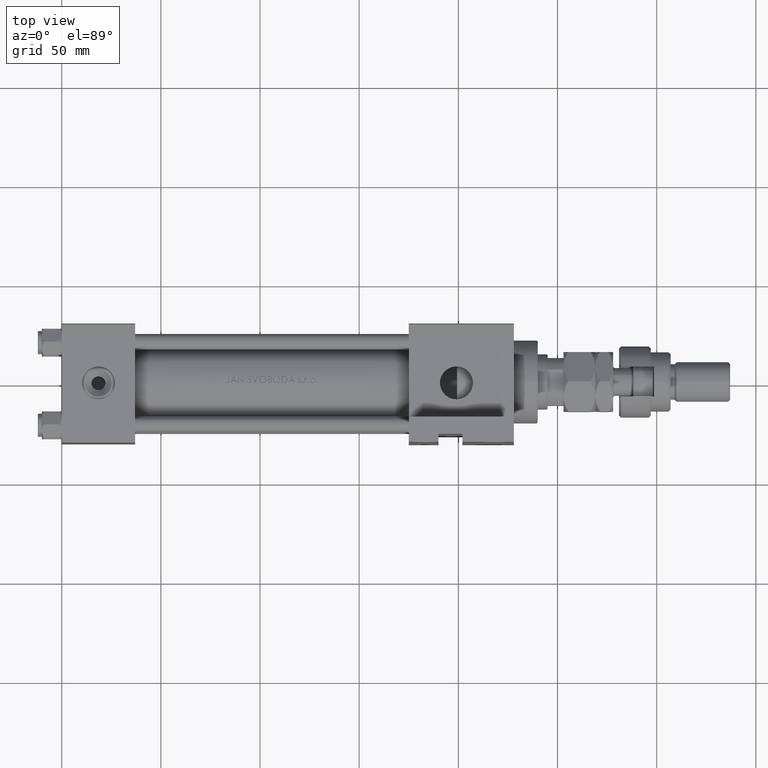
[diagram: clean part render]
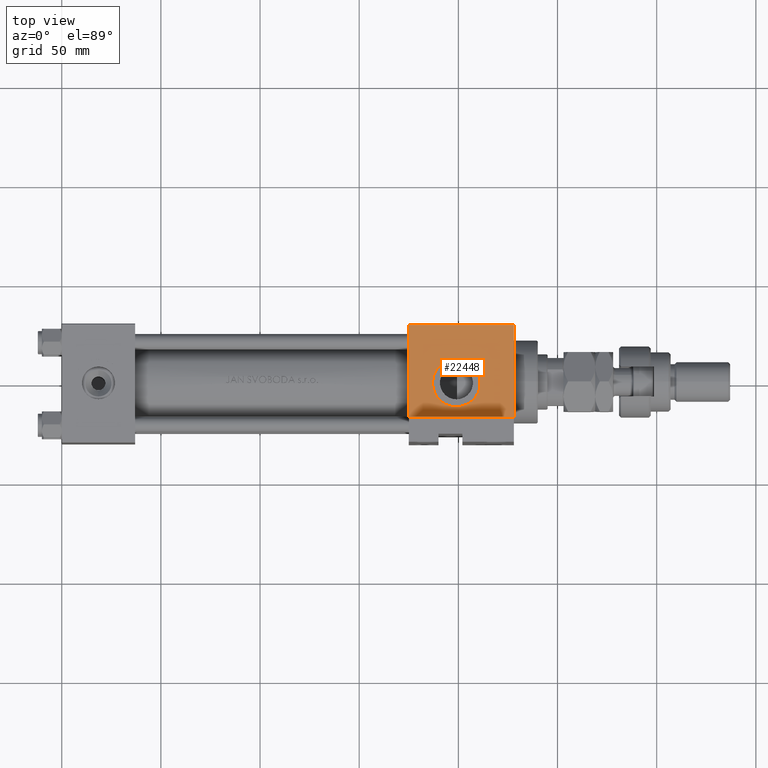
[diagram: same view with one face highlighted and labeled with its STEP entity id]
A machine part, top view. The second image highlights one B-rep face of the part: STEP entity #22448.
In plain terms, the highlighted planar face has unit normal (0, 0, -1).
Its self-contained STEP definition (entity closure, byte-faithful):
#780 = AXIS2_PLACEMENT_3D ( 'NONE', #2807, #26972, #31295 ) ;
#871 = VECTOR ( 'NONE', #53428, 1000.000000000000000 ) ;
#2807 = CARTESIAN_POINT ( 'NONE',  ( 199.0000000000000000, -30.00000000000000000, 0.000000000000000000 ) ) ;
#3463 = DIRECTION ( 'NONE',  ( -0.000000000000000000, 1.000000000000000000, 0.000000000000000000 ) ) ;
#3965 = LINE ( 'NONE', #16433, #14555 ) ;
#4286 = CIRCLE ( 'NONE', #780, 12.00000000000000533 ) ;
#4343 = LINE ( 'NONE', #20354, #871 ) ;
#5247 = CARTESIAN_POINT ( 'NONE',  ( 175.0000000000000284, -30.00000000000000000, 29.50000000000001776 ) ) ;
#5619 = DIRECTION ( 'NONE',  ( 0.000000000000000000, 0.000000000000000000, -1.000000000000000000 ) ) ;
#5981 = CARTESIAN_POINT ( 'NONE',  ( 228.0000000000000000, -30.00000000000000000, 29.50000000000001776 ) ) ;
#6167 = ORIENTED_EDGE ( 'NONE', *, *, #45989, .T. ) ;
#7065 = EDGE_CURVE ( 'NONE', #21072, #24939, #32379, .T. ) ;
#10650 = AXIS2_PLACEMENT_3D ( 'NONE', #16466, #3463, #20010 ) ;
#14555 = VECTOR ( 'NONE', #16694, 1000.000000000000000 ) ;
#14780 = EDGE_CURVE ( 'NONE', #42844, #15745, #4286, .T. ) ;
#15717 = AXIS2_PLACEMENT_3D ( 'NONE', #47125, #38993, #5619 ) ;
#15745 = VERTEX_POINT ( 'NONE', #38563 ) ;
#15990 = ORIENTED_EDGE ( 'NONE', *, *, #14780, .F. ) ;
#16433 = CARTESIAN_POINT ( 'NONE',  ( 228.0000000000000000, -30.00000000000000000, 29.99999999999999289 ) ) ;
#16466 = CARTESIAN_POINT ( 'NONE',  ( 228.0000000000000000, -30.00000000000000000, 29.99999999999999289 ) ) ;
#16694 = DIRECTION ( 'NONE',  ( 0.000000000000000000, 0.000000000000000000, -1.000000000000000000 ) ) ;
#17483 = VECTOR ( 'NONE', #26401, 1000.000000000000000 ) ;
#20010 = DIRECTION ( 'NONE',  ( 0.000000000000000000, -0.000000000000000000, 1.000000000000000000 ) ) ;
#20354 = CARTESIAN_POINT ( 'NONE',  ( 175.0000000000000284, -30.00000000000000000, -17.49999999999999645 ) ) ;
#20421 = DIRECTION ( 'NONE',  ( -1.000000000000000000, 0.000000000000000000, 0.000000000000000000 ) ) ;
#20537 = PLANE ( 'NONE',  #10650 ) ;
#20579 = CARTESIAN_POINT ( 'NONE',  ( 175.0000000000000284, -30.00000000000000000, -17.49999999999999645 ) ) ;
#21072 = VERTEX_POINT ( 'NONE', #5981 ) ;
#21382 = EDGE_LOOP ( 'NONE', ( #32417, #45855, #24127, #6167 ) ) ;
#22448 = ADVANCED_FACE ( 'NONE', ( #24098, #40636 ), #20537, .F. ) ;
#23400 = VERTEX_POINT ( 'NONE', #30894 ) ;
#24098 = FACE_BOUND ( 'NONE', #42811, .T. ) ;
#24127 = ORIENTED_EDGE ( 'NONE', *, *, #49198, .T. ) ;
#24776 = CARTESIAN_POINT ( 'NONE',  ( 228.0000000000000000, -30.00000000000000000, 29.50000000000001776 ) ) ;
#24939 = VERTEX_POINT ( 'NONE', #5247 ) ;
#25854 = LINE ( 'NONE', #43453, #17483 ) ;
#26401 = DIRECTION ( 'NONE',  ( 0.000000000000000000, 0.000000000000000000, -1.000000000000000000 ) ) ;
#26778 = CARTESIAN_POINT ( 'NONE',  ( 199.0000000000000000, -30.00000000000000000, 12.00000000000000533 ) ) ;
#26972 = DIRECTION ( 'NONE',  ( 0.000000000000000000, -1.000000000000000000, -8.673617379884036705E-17 ) ) ;
#30894 = CARTESIAN_POINT ( 'NONE',  ( 228.0000000000000000, -30.00000000000000000, -17.49999999999998224 ) ) ;
#31295 = DIRECTION ( 'NONE',  ( 0.000000000000000000, 0.000000000000000000, -1.000000000000000000 ) ) ;
#32379 = LINE ( 'NONE', #24776, #51589 ) ;
#32417 = ORIENTED_EDGE ( 'NONE', *, *, #36241, .F. ) ;
#34770 = CIRCLE ( 'NONE', #15717, 12.00000000000000533 ) ;
#36241 = EDGE_CURVE ( 'NONE', #21072, #23400, #3965, .T. ) ;
#37932 = VERTEX_POINT ( 'NONE', #20579 ) ;
#38563 = CARTESIAN_POINT ( 'NONE',  ( 199.0000000000000000, -30.00000000000000000, -12.00000000000000533 ) ) ;
#38993 = DIRECTION ( 'NONE',  ( 0.000000000000000000, -1.000000000000000000, -8.673617379884036705E-17 ) ) ;
#40636 = FACE_OUTER_BOUND ( 'NONE', #21382, .T. ) ;
#42811 = EDGE_LOOP ( 'NONE', ( #46456, #15990 ) ) ;
#42844 = VERTEX_POINT ( 'NONE', #26778 ) ;
#43453 = CARTESIAN_POINT ( 'NONE',  ( 175.0000000000000284, -30.00000000000000000, 29.99999999999999289 ) ) ;
#45855 = ORIENTED_EDGE ( 'NONE', *, *, #7065, .T. ) ;
#45989 = EDGE_CURVE ( 'NONE', #37932, #23400, #4343, .T. ) ;
#46456 = ORIENTED_EDGE ( 'NONE', *, *, #47617, .F. ) ;
#47125 = CARTESIAN_POINT ( 'NONE',  ( 199.0000000000000000, -30.00000000000000000, 0.000000000000000000 ) ) ;
#47617 = EDGE_CURVE ( 'NONE', #15745, #42844, #34770, .T. ) ;
#49198 = EDGE_CURVE ( 'NONE', #24939, #37932, #25854, .T. ) ;
#51589 = VECTOR ( 'NONE', #20421, 1000.000000000000000 ) ;
#53428 = DIRECTION ( 'NONE',  ( 1.000000000000000000, -1.963837897332233702E-16, 0.000000000000000000 ) ) ;